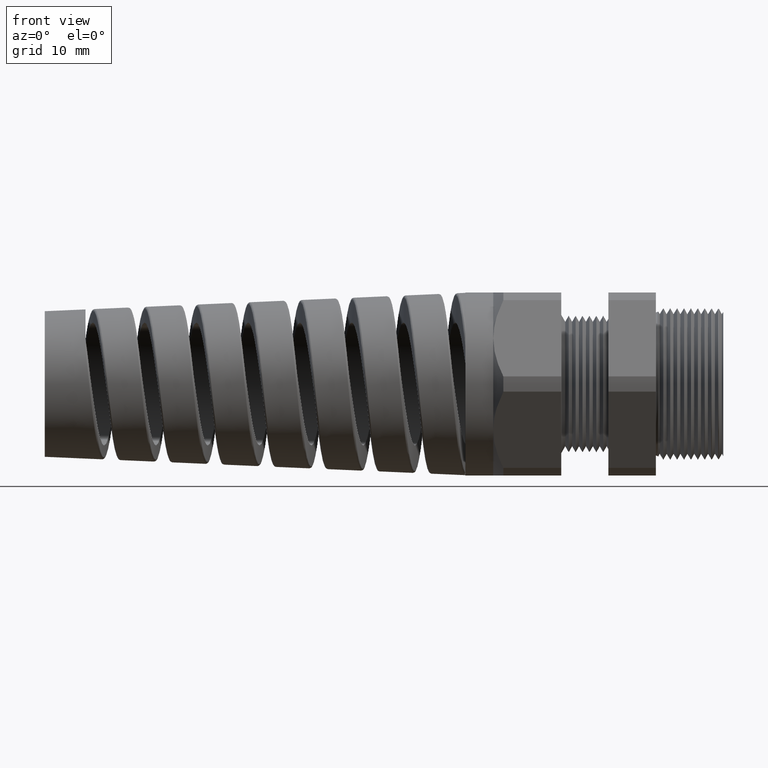
[diagram: clean part render]
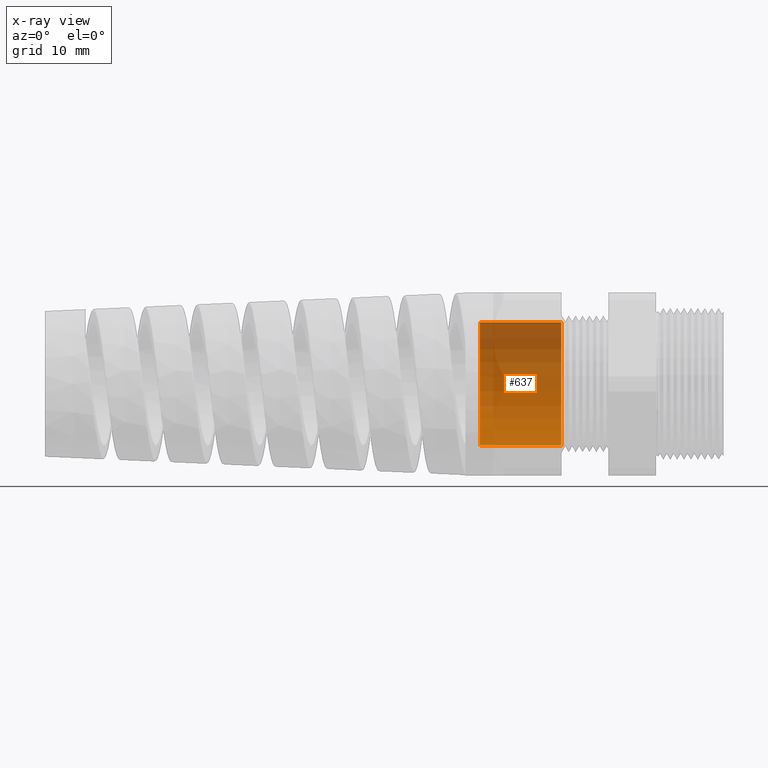
[diagram: x-ray — body ghosted, one internal face saturated and labeled with its STEP entity id]
A machine part, front view, then the same camera in x-ray: the body is ghosted and one INTERNAL B-rep face — a face not visible from any outside direction — is saturated and labeled: STEP entity #637.
In plain terms, the highlighted cylindrical surface (partial cylindrical patch) has radius 9.0424 mm, axis along (1, 0, 0).
Its self-contained STEP definition (entity closure, byte-faithful):
#625 = VERTEX_POINT ( 'NONE', #8875 ) ;
#627 = EDGE_CURVE ( 'NONE', #628, #625, #8874, .T. ) ;
#628 = VERTEX_POINT ( 'NONE', #8869 ) ;
#631 = EDGE_LOOP ( 'NONE', ( #638, #639, #642, #645 ) ) ;
#637 = ADVANCED_FACE ( 'NONE', ( #8915 ), #8913, .T. ) ;
#638 = ORIENTED_EDGE ( 'NONE', *, *, #627, .T. ) ;
#639 = ORIENTED_EDGE ( 'NONE', *, *, #640, .T. ) ;
#640 = EDGE_CURVE ( 'NONE', #625, #641, #8909, .T. ) ;
#641 = VERTEX_POINT ( 'NONE', #8905 ) ;
#642 = ORIENTED_EDGE ( 'NONE', *, *, #643, .F. ) ;
#643 = EDGE_CURVE ( 'NONE', #644, #641, #8904, .T. ) ;
#644 = VERTEX_POINT ( 'NONE', #8899 ) ;
#645 = ORIENTED_EDGE ( 'NONE', *, *, #646, .F. ) ;
#646 = EDGE_CURVE ( 'NONE', #628, #644, #8898, .T. ) ;
#8869 = CARTESIAN_POINT ( 'NONE',  ( -1.330000000000000100, 0.0000000000000000000, -0.3559999999999999300 ) ) ;
#8870 = DIRECTION ( 'NONE',  ( 0.0000000000000000000, 0.0000000000000000000, -1.000000000000000000 ) ) ;
#8871 = DIRECTION ( 'NONE',  ( 1.000000000000000000, 0.0000000000000000000, 0.0000000000000000000 ) ) ;
#8872 = CARTESIAN_POINT ( 'NONE',  ( -1.330000000000000100, 0.0000000000000000000, 0.0000000000000000000 ) ) ;
#8873 = AXIS2_PLACEMENT_3D ( 'NONE', #8872, #8871, #8870 ) ;
#8874 = CIRCLE ( 'NONE', #8873, 0.3559999999999999300 ) ;
#8875 = CARTESIAN_POINT ( 'NONE',  ( -1.330000000000000100, 4.359742604964576400E-017, 0.3559999999999999300 ) ) ;
#8895 = DIRECTION ( 'NONE',  ( 1.000000000000000000, 0.0000000000000000000, 0.0000000000000000000 ) ) ;
#8896 = VECTOR ( 'NONE', #8895, 39.37007874015748100 ) ;
#8897 = CARTESIAN_POINT ( 'NONE',  ( 0.09602717987635048200, 0.0000000000000000000, -0.3559999999999999800 ) ) ;
#8898 = LINE ( 'NONE', #8897, #8896 ) ;
#8899 = CARTESIAN_POINT ( 'NONE',  ( -0.8581889763779526600, 0.0000000000000000000, -0.3559999999999999800 ) ) ;
#8900 = DIRECTION ( 'NONE',  ( 0.0000000000000000000, 0.0000000000000000000, -1.000000000000000000 ) ) ;
#8901 = DIRECTION ( 'NONE',  ( 1.000000000000000000, 0.0000000000000000000, 0.0000000000000000000 ) ) ;
#8902 = CARTESIAN_POINT ( 'NONE',  ( -0.8581889763779526600, 0.0000000000000000000, 0.0000000000000000000 ) ) ;
#8903 = AXIS2_PLACEMENT_3D ( 'NONE', #8902, #8901, #8900 ) ;
#8904 = CIRCLE ( 'NONE', #8903, 0.3559999999999999800 ) ;
#8905 = CARTESIAN_POINT ( 'NONE',  ( -0.8581889763779526600, 4.359742604964577000E-017, 0.3559999999999999800 ) ) ;
#8906 = DIRECTION ( 'NONE',  ( 1.000000000000000000, 0.0000000000000000000, 0.0000000000000000000 ) ) ;
#8907 = VECTOR ( 'NONE', #8906, 39.37007874015748100 ) ;
#8908 = CARTESIAN_POINT ( 'NONE',  ( 0.09602717987635048200, 4.359742604964577000E-017, 0.3559999999999999800 ) ) ;
#8909 = LINE ( 'NONE', #8908, #8907 ) ;
#8910 = DIRECTION ( 'NONE',  ( 0.0000000000000000000, 0.0000000000000000000, -1.000000000000000000 ) ) ;
#8911 = DIRECTION ( 'NONE',  ( 1.000000000000000000, 0.0000000000000000000, 0.0000000000000000000 ) ) ;
#8912 = AXIS2_PLACEMENT_3D ( 'NONE', #8914, #8911, #8910 ) ;
#8913 = CYLINDRICAL_SURFACE ( 'NONE', #8912, 0.3559999999999999800 ) ;
#8914 = CARTESIAN_POINT ( 'NONE',  ( 0.09602717987635048200, 0.0000000000000000000, 0.0000000000000000000 ) ) ;
#8915 = FACE_OUTER_BOUND ( 'NONE', #631, .T. ) ;